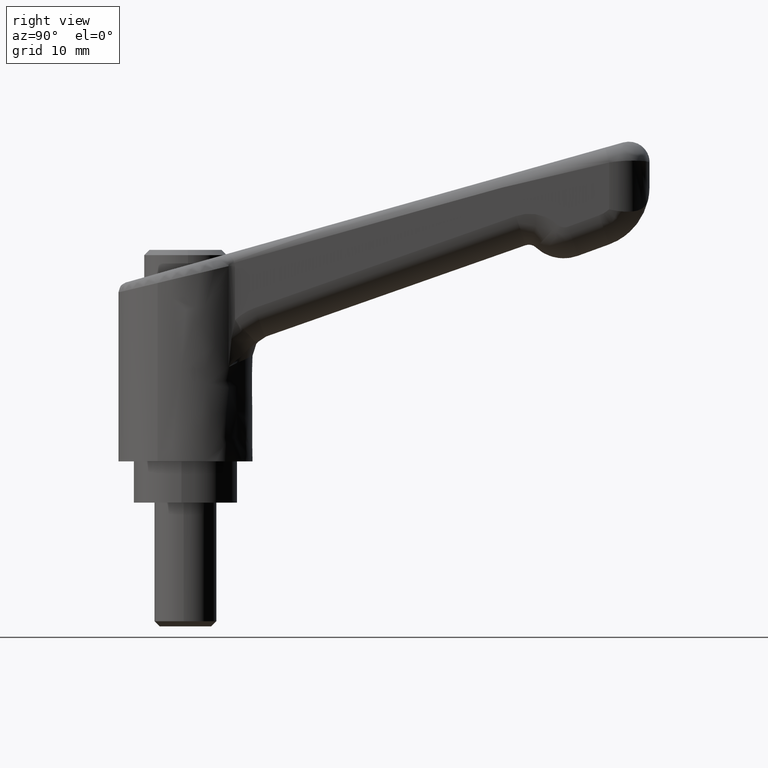
[diagram: clean part render]
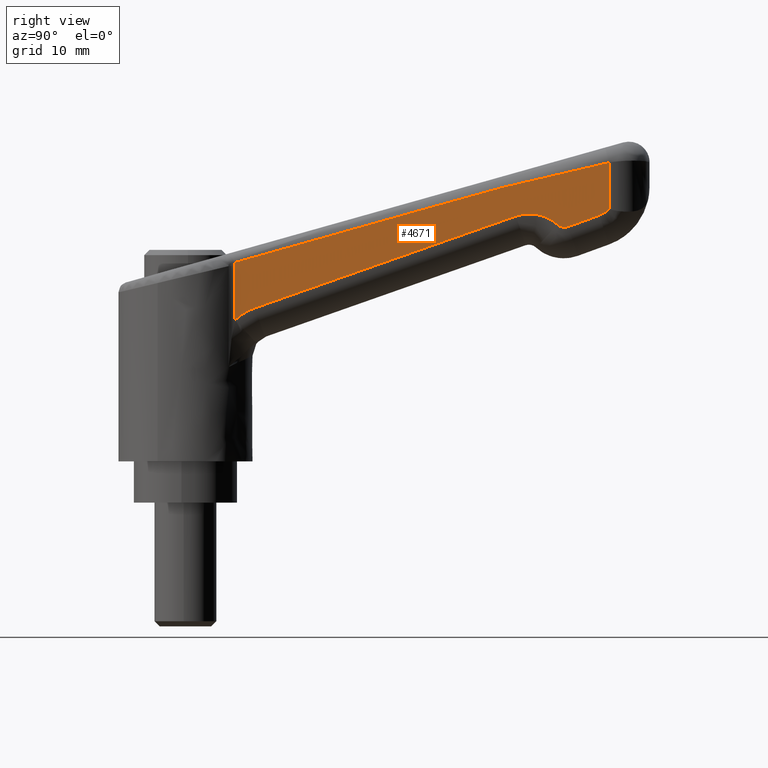
[diagram: same view with one face highlighted and labeled with its STEP entity id]
A machine part, right view. The second image highlights one B-rep face of the part: STEP entity #4671.
In plain terms, the highlighted face is a freeform B-spline surface patch.
Its self-contained STEP definition (entity closure, byte-faithful):
#2743=CARTESIAN_POINT('',(41.081942629000849,-3.999144946131885,28.444855264286200));
#2744=VERTEX_POINT('',#2743);
#2788=CARTESIAN_POINT('',(40.087518717605093,-4.019520649416160,27.843354198447798));
#2789=VERTEX_POINT('',#2788);
#2790=CARTESIAN_POINT('',(40.087518717605093,-4.019520649416160,27.843354198447798));
#2791=CARTESIAN_POINT('',(40.644109860407163,-4.008116120777592,28.045937282120139));
#2792=CARTESIAN_POINT('',(41.081942629000849,-3.999144946131885,28.444855264286200));
#2800=(BOUNDED_CURVE()B_SPLINE_CURVE(2,(#2790,#2791,#2792),.UNSPECIFIED.,.F.,.U.)CURVE()GEOMETRIC_REPRESENTATION_ITEM()QUASI_UNIFORM_CURVE()RATIONAL_B_SPLINE_CURVE((1.0,0.981061304515185,1.0))REPRESENTATION_ITEM(''));
#2801=EDGE_CURVE('',#2789,#2744,#2800,.T.);
#2848=CARTESIAN_POINT('',(37.084758577035153,-4.081047075879730,26.750438415669301));
#2849=VERTEX_POINT('',#2848);
#2871=CARTESIAN_POINT('',(37.084758577035153,-4.081047075879730,26.750438415669301));
#2872=CARTESIAN_POINT('',(40.087518717605093,-4.019520649416160,27.843354198447798));
#2873=QUASI_UNIFORM_CURVE('',1,(#2871,#2872),.UNSPECIFIED.,.F.,.U.);
#2874=EDGE_CURVE('',#2849,#2789,#2873,.T.);
#2905=CARTESIAN_POINT('',(36.066367309400249,-4.101913869265159,26.953569872643950));
#2906=VERTEX_POINT('',#2905);
#2938=CARTESIAN_POINT('',(36.066367309400249,-4.101913869265159,26.953569872643950));
#2939=CARTESIAN_POINT('',(36.513857694419052,-4.092744810473300,26.542647398137415));
#2940=CARTESIAN_POINT('',(37.084758577035153,-4.081047075879730,26.750438415669301));
#2948=(BOUNDED_CURVE()B_SPLINE_CURVE(2,(#2938,#2939,#2940),.UNSPECIFIED.,.F.,.U.)CURVE()GEOMETRIC_REPRESENTATION_ITEM()QUASI_UNIFORM_CURVE()RATIONAL_B_SPLINE_CURVE((1.0,0.854636887396113,1.0))REPRESENTATION_ITEM(''));
#2949=EDGE_CURVE('',#2906,#2849,#2948,.T.);
#3012=CARTESIAN_POINT('',(32.033624131454147,-4.184544603978870,27.780703603211851));
#3013=VERTEX_POINT('',#3012);
#3043=CARTESIAN_POINT('',(32.033624131454147,-4.184544603978870,27.780703603211851));
#3044=CARTESIAN_POINT('',(34.298195513550105,-4.138143633508657,28.577250635467664));
#3045=CARTESIAN_POINT('',(36.066367309400249,-4.101913869265159,26.953569872643950));
#3053=(BOUNDED_CURVE()B_SPLINE_CURVE(2,(#3043,#3044,#3045),.UNSPECIFIED.,.F.,.U.)CURVE()GEOMETRIC_REPRESENTATION_ITEM()QUASI_UNIFORM_CURVE()RATIONAL_B_SPLINE_CURVE((1.0,0.857438338275757,1.0))REPRESENTATION_ITEM(''));
#3054=EDGE_CURVE('',#3013,#2906,#3053,.T.);
#3073=CARTESIAN_POINT('',(6.729902961068190,-4.703016765244750,18.880297918210101));
#3074=VERTEX_POINT('',#3073);
#3096=CARTESIAN_POINT('',(6.729902961068190,-4.703016765244750,18.880297918210101));
#3097=CARTESIAN_POINT('',(32.033624131454147,-4.184544603978870,27.780703603211851));
#3098=QUASI_UNIFORM_CURVE('',1,(#3096,#3097),.UNSPECIFIED.,.F.,.U.);
#3099=EDGE_CURVE('',#3074,#3013,#3098,.T.);
#3152=CARTESIAN_POINT('',(4.804073263716750,-4.742476933126480,17.698528247989699));
#3153=VERTEX_POINT('',#3152);
#3181=CARTESIAN_POINT('',(4.804073263716750,-4.742476933126480,17.698528247989699));
#3182=CARTESIAN_POINT('',(5.081403213958639,-4.736794454343324,17.961576937454311));
#3183=CARTESIAN_POINT('',(5.380835734717220,-4.730659094838468,18.191763167411199));
#3184=CARTESIAN_POINT('',(5.862690704679486,-4.720785907175248,18.488414421551312));
#3185=CARTESIAN_POINT('',(6.028802928873226,-4.717382274827637,18.579129752211180));
#3186=CARTESIAN_POINT('',(6.286567474621514,-4.712100690343206,18.702421764875520));
#3187=CARTESIAN_POINT('',(6.374012153470831,-4.710308952624912,18.741410024726420));
#3188=CARTESIAN_POINT('',(6.550518317188006,-4.706692348902363,18.814450460097500));
#3189=CARTESIAN_POINT('',(6.639728258086272,-4.704864441040407,18.848579601617089));
#3190=CARTESIAN_POINT('',(6.729902961068190,-4.703016765244750,18.880297918210101));
#3191=B_SPLINE_CURVE_WITH_KNOTS('',3,(#3181,#3182,#3183,#3184,#3185,#3186,#3187,#3188,#3189,#3190),.UNSPECIFIED.,.F.,.U.,(4,2,2,2,4),(0.0,0.500000000000002,0.750000000000002,0.875000000000001,1.0),.UNSPECIFIED.);
#3192=EDGE_CURVE('',#3153,#3074,#3191,.T.);
#3591=CARTESIAN_POINT('',(4.804073263716750,-4.742476933126480,22.927593525127300));
#3592=VERTEX_POINT('',#3591);
#3593=CARTESIAN_POINT('',(4.804073263716750,-4.742476933126480,22.927593525127300));
#3594=CARTESIAN_POINT('',(4.804073263716750,-4.742476933126480,17.698528247989699));
#3595=QUASI_UNIFORM_CURVE('',1,(#3593,#3594),.UNSPECIFIED.,.F.,.U.);
#3596=EDGE_CURVE('',#3592,#3153,#3595,.T.);
#3686=CARTESIAN_POINT('',(4.752992631289641,-4.743523573093560,23.264541861390850));
#3687=VERTEX_POINT('',#3686);
#3716=CARTESIAN_POINT('',(4.752992631289641,-4.743523573093560,23.264541861390850));
#3717=CARTESIAN_POINT('',(4.769240970200588,-4.743190645326323,23.209456991446341));
#3718=CARTESIAN_POINT('',(4.781527066321563,-4.742938903743871,23.153822376348110));
#3719=CARTESIAN_POINT('',(4.798488953245681,-4.742591355408459,23.041497247084230));
#3720=CARTESIAN_POINT('',(4.803021990694848,-4.742498473665596,22.984786926468331));
#3721=CARTESIAN_POINT('',(4.804073263716750,-4.742476933126480,22.927593525127300));
#3722=B_SPLINE_CURVE_WITH_KNOTS('',3,(#3716,#3717,#3718,#3719,#3720,#3721),.UNSPECIFIED.,.F.,.U.,(4,2,4),(0.0,0.500000000000000,1.0),.UNSPECIFIED.);
#3723=EDGE_CURVE('',#3687,#3592,#3722,.T.);
#4299=CARTESIAN_POINT('',(41.081942629000849,-3.999144946131885,32.970756681699797));
#4300=VERTEX_POINT('',#4299);
#4533=CARTESIAN_POINT('',(41.081942629000800,-3.999144946131865,32.970756681699797));
#4534=CARTESIAN_POINT('',(39.031401004508901,-4.041160456050630,32.393419744231451));
#4535=CARTESIAN_POINT('',(36.926376402367197,-4.084292319844150,32.009672564183603));
#4536=CARTESIAN_POINT('',(34.848593289050349,-4.126866006700290,31.529130505425499));
#4537=CARTESIAN_POINT('',(32.770810175733551,-4.169439693556431,31.048588446667349));
#4538=CARTESIAN_POINT('',(30.693027062416750,-4.212013380412575,30.568046387909249));
#4539=CARTESIAN_POINT('',(28.642485437924801,-4.254028890331335,29.990709450440850));
#4540=CARTESIAN_POINT('',(20.679321169046421,-4.417193784585410,27.748653587424180));
#4541=CARTESIAN_POINT('',(12.716156900168039,-4.580358678839486,25.506597724407520));
#4542=CARTESIAN_POINT('',(4.752992631289661,-4.743523573093562,23.264541861390850));
#4543=B_SPLINE_CURVE_WITH_KNOTS('',3,(#4533,#4534,#4535,#4536,#4537,#4538,#4539,#4540,#4541,#4542),.UNSPECIFIED.,.F.,.U.,(4,3,3,4),(0.673141981021412,0.728697536576967,0.784253092132523,1.000000000000000),.UNSPECIFIED.);
#4544=EDGE_CURVE('',#4300,#3687,#4543,.T.);
#4613=CARTESIAN_POINT('',(41.081942629000849,-3.999144946131885,28.444855264286200));
#4614=CARTESIAN_POINT('',(41.081942629000849,-3.999144946131885,32.970756681699797));
#4615=QUASI_UNIFORM_CURVE('',1,(#4613,#4614),.UNSPECIFIED.,.F.,.U.);
#4616=EDGE_CURVE('',#2744,#4300,#4615,.T.);
#4654=CARTESIAN_POINT('',(2.938361649316525,-4.780705284067572,33.733604318998317));
#4655=CARTESIAN_POINT('',(42.896574585392337,-3.961963215192115,33.733604318998317));
#4656=CARTESIAN_POINT('',(2.938361649316525,-4.780705284067572,16.935680064513729));
#4657=CARTESIAN_POINT('',(42.896574585392337,-3.961963215192115,16.935680064513729));
#4658=B_SPLINE_SURFACE_WITH_KNOTS('',1,1,((#4654,#4656),(#4655,#4657)),.UNSPECIFIED.,.F.,.F.,.U.,(2,2),(2,2),(0.0,39.966600050793957),(0.0,16.797924254484592),.UNSPECIFIED.);
#4659=ORIENTED_EDGE('',*,*,#2874,.T.);
#4660=ORIENTED_EDGE('',*,*,#2801,.T.);
#4661=ORIENTED_EDGE('',*,*,#4616,.T.);
#4662=ORIENTED_EDGE('',*,*,#4544,.T.);
#4663=ORIENTED_EDGE('',*,*,#3723,.T.);
#4664=ORIENTED_EDGE('',*,*,#3596,.T.);
#4665=ORIENTED_EDGE('',*,*,#3192,.T.);
#4666=ORIENTED_EDGE('',*,*,#3099,.T.);
#4667=ORIENTED_EDGE('',*,*,#3054,.T.);
#4668=ORIENTED_EDGE('',*,*,#2949,.T.);
#4669=EDGE_LOOP('',(#4659,#4660,#4661,#4662,#4663,#4664,#4665,#4666,#4667,#4668));
#4670=FACE_OUTER_BOUND('',#4669,.T.);
#4671=ADVANCED_FACE('',(#4670),#4658,.F.);